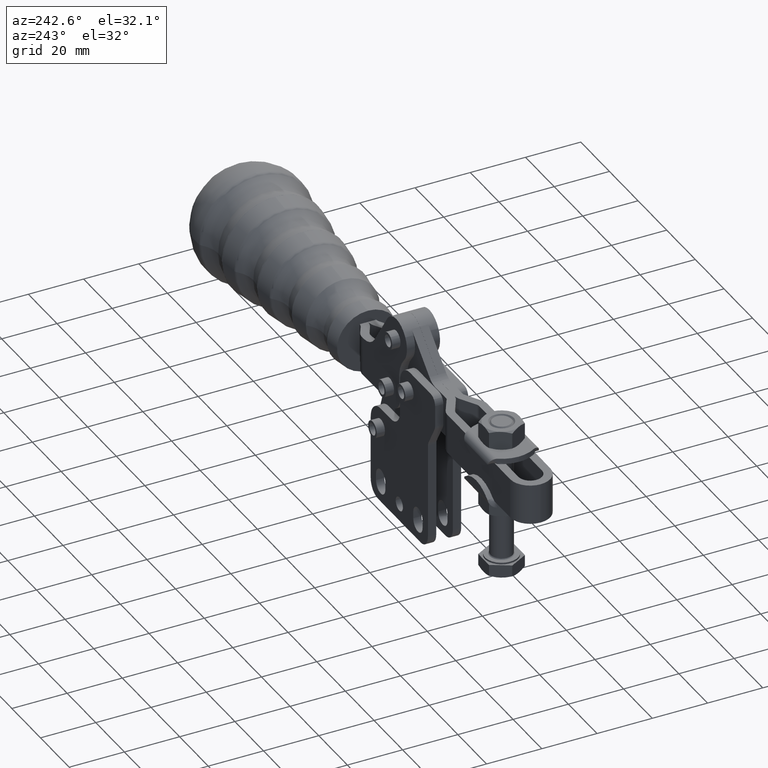
[diagram: clean part render]
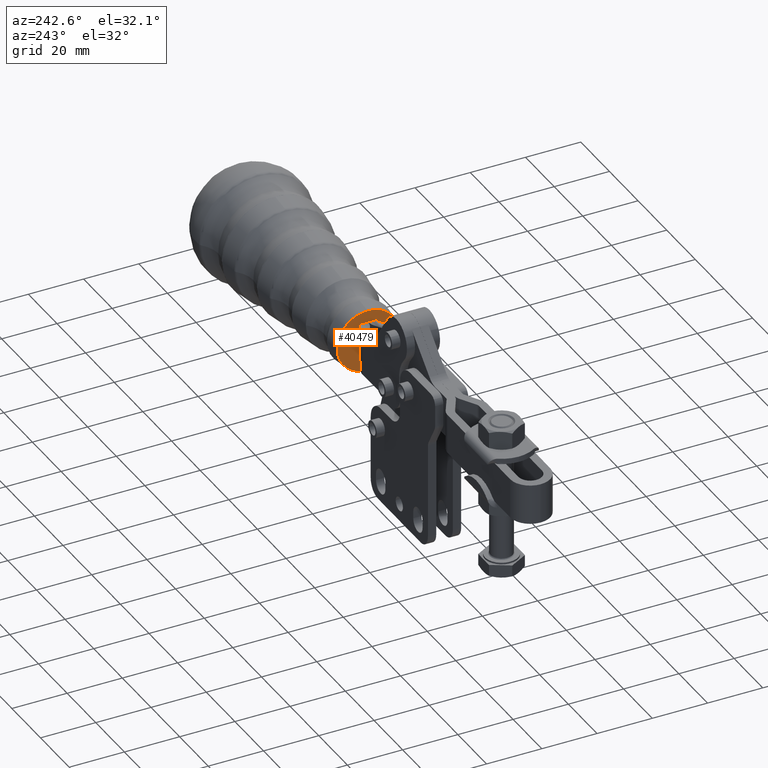
[diagram: same view with one face highlighted and labeled with its STEP entity id]
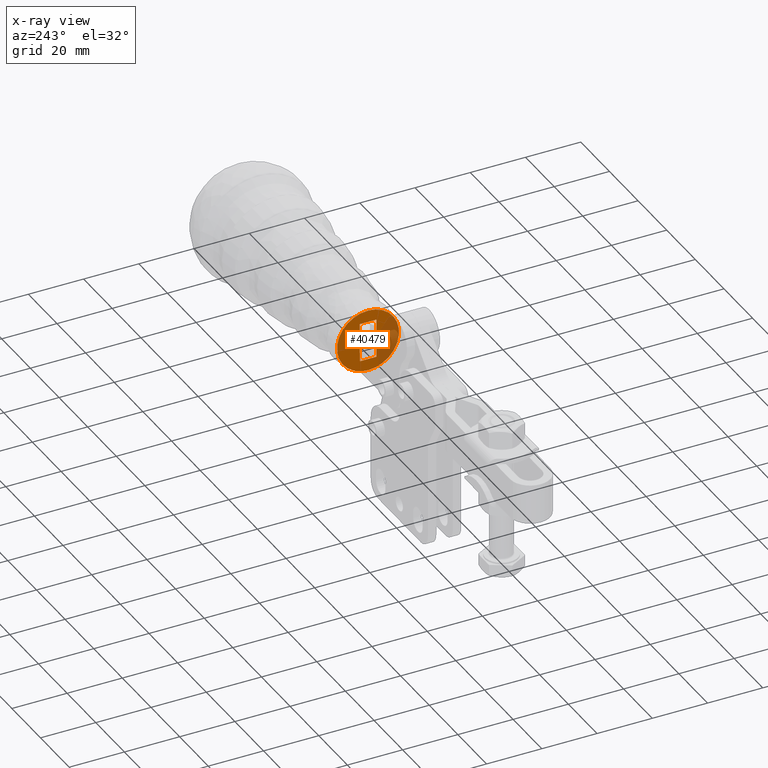
[diagram: x-ray of the same camera — body ghosted, the highlighted face saturated]
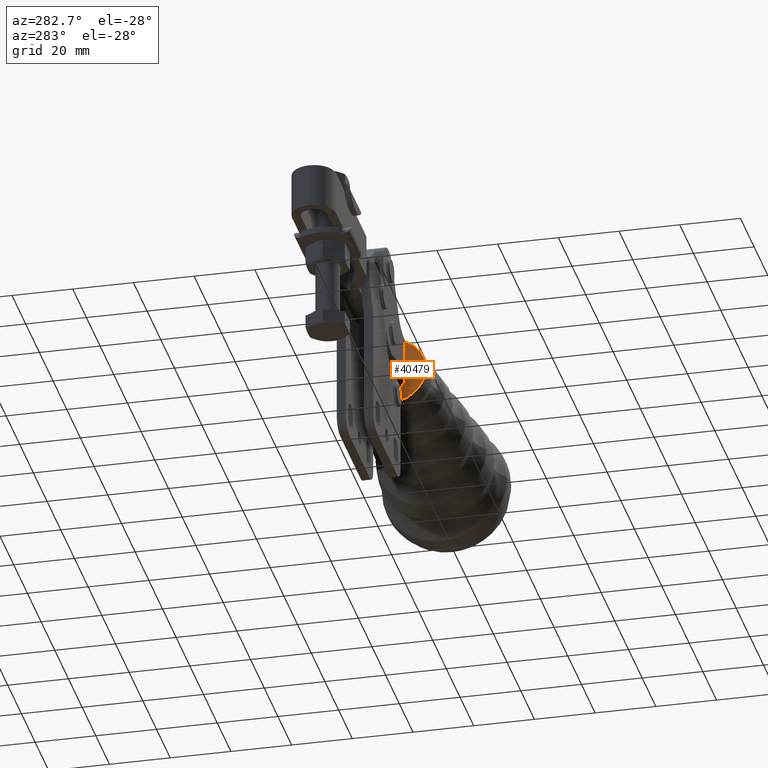
[diagram: same view with one face highlighted and labeled with its STEP entity id]
A machine part, auxiliary view. The second image highlights one B-rep face of the part: STEP entity #40479.
The next image is the same camera in x-ray: the body ghosted, the highlighted face saturated — about 30% of this face is hidden behind the body in this view.
A second angle (auxiliary view) of the same face is appended — the face is thin or edge-on in the first view.
In plain terms, the highlighted planar face has unit normal (-0.9999, -0, 0.0116).
Its self-contained STEP definition (entity closure, byte-faithful):
#1526=CARTESIAN_POINT('',(111.945821447134360,-66.289459766818965,-10.842478720014924));
#1527=VERTEX_POINT('',#1526);
#1536=CARTESIAN_POINT('',(112.205506961597180,-66.289459766818965,11.615246636916583));
#1537=VERTEX_POINT('',#1536);
#1544=CARTESIAN_POINT('',(112.075664204365780,-66.289459766818965,0.386383958450831));
#1545=DIRECTION('',(-0.999933151699302,-1.726863E-016,0.011562531414043));
#1546=DIRECTION('',(-0.011562531414043,1.289759E-016,-0.999933151699302));
#1547=AXIS2_PLACEMENT_3D('',#1544,#1545,#1546);
#1548=CIRCLE('',#1547,11.229613359036300);
#1549=EDGE_CURVE('',#1527,#1537,#1548,.T.);
#17153=CARTESIAN_POINT('',(112.156601924262730,-66.289459766818950,7.385916020345923));
#17154=VERTEX_POINT('',#17153);
#17163=CARTESIAN_POINT('',(111.994726484466130,-66.289459766818965,-6.613148103444315));
#17164=VERTEX_POINT('',#17163);
#17186=CARTESIAN_POINT('',(112.156601924262730,-63.289459766818950,7.385916020345922));
#17187=VERTEX_POINT('',#17186);
#17195=CARTESIAN_POINT('',(111.994726484466130,-63.289459766818950,-6.613148103444316));
#17196=VERTEX_POINT('',#17195);
#17197=CARTESIAN_POINT('',(111.994726484466130,-63.289459766818950,-6.613148103444316));
#17198=DIRECTION('',(0.011562531414043,0.0,0.999933151699302));
#17199=VECTOR('',#17198,14.000000000000009);
#17200=LINE('',#17197,#17199);
#17201=EDGE_CURVE('',#17196,#17187,#17200,.T.);
#17944=CARTESIAN_POINT('',(112.156601924265230,-69.289459766818965,7.385916020345963));
#17945=VERTEX_POINT('',#17944);
#17954=CARTESIAN_POINT('',(111.994726484468600,-69.289459766818965,-6.613148103444276));
#17955=VERTEX_POINT('',#17954);
#17963=CARTESIAN_POINT('',(111.994726484468600,-69.289459766818965,-6.613148103444276));
#17964=DIRECTION('',(0.011562531414045,0.0,0.999933151699302));
#17965=VECTOR('',#17964,14.000000000000012);
#17966=LINE('',#17963,#17965);
#17967=EDGE_CURVE('',#17955,#17945,#17966,.T.);
#18402=CARTESIAN_POINT('',(111.994726484466130,-66.289459766818965,-6.613148103444315));
#18403=DIRECTION('',(8.242296E-013,-1.0,1.302662E-014));
#18404=VECTOR('',#18403,3.0);
#18405=LINE('',#18402,#18404);
#18406=EDGE_CURVE('',#17164,#17955,#18405,.T.);
#40390=CARTESIAN_POINT('',(111.994726484466130,-63.289459766818950,-6.613148103444316));
#40391=DIRECTION('',(0.0,-1.0,0.0));
#40392=VECTOR('',#40391,3.000000000000014);
#40393=LINE('',#40390,#40392);
#40394=EDGE_CURVE('',#17196,#17164,#40393,.T.);
#40415=CARTESIAN_POINT('',(112.156601924265230,-69.289459766818965,7.385916020345963));
#40416=DIRECTION('',(-8.337035E-013,1.0,-1.332268E-014));
#40417=VECTOR('',#40416,3.000000000000014);
#40418=LINE('',#40415,#40417);
#40419=EDGE_CURVE('',#17945,#17154,#40418,.T.);
#40438=CARTESIAN_POINT('',(112.156601924262730,-66.289459766818950,7.385916020345923));
#40439=DIRECTION('',(0.0,1.0,0.0));
#40440=VECTOR('',#40439,3.0);
#40441=LINE('',#40438,#40440);
#40442=EDGE_CURVE('',#17154,#17187,#40441,.T.);
#40456=CARTESIAN_POINT('',(112.010742825750070,-66.289459766818965,-5.228047380782046));
#40457=DIRECTION('',(-0.999933151699302,-1.726863E-016,0.011562531414043));
#40458=DIRECTION('',(0.0,1.0,0.0));
#40459=AXIS2_PLACEMENT_3D('',#40456,#40457,#40458);
#40460=PLANE('',#40459);
#40461=ORIENTED_EDGE('',*,*,#1549,.T.);
#40462=CARTESIAN_POINT('',(112.075664204365780,-66.289459766818965,0.386383958450831));
#40463=DIRECTION('',(-0.999933151699302,-1.726863E-016,0.011562531414043));
#40464=DIRECTION('',(-0.011562531414043,1.289759E-016,-0.999933151699302));
#40465=AXIS2_PLACEMENT_3D('',#40462,#40463,#40464);
#40466=CIRCLE('',#40465,11.229613359036300);
#40467=EDGE_CURVE('',#1537,#1527,#40466,.T.);
#40468=ORIENTED_EDGE('',*,*,#40467,.T.);
#40469=EDGE_LOOP('',(#40461,#40468));
#40470=FACE_OUTER_BOUND('',#40469,.T.);
#40471=ORIENTED_EDGE('',*,*,#17967,.F.);
#40472=ORIENTED_EDGE('',*,*,#18406,.F.);
#40473=ORIENTED_EDGE('',*,*,#40394,.F.);
#40474=ORIENTED_EDGE('',*,*,#17201,.T.);
#40475=ORIENTED_EDGE('',*,*,#40442,.F.);
#40476=ORIENTED_EDGE('',*,*,#40419,.F.);
#40477=EDGE_LOOP('',(#40471,#40472,#40473,#40474,#40475,#40476));
#40478=FACE_BOUND('',#40477,.T.);
#40479=ADVANCED_FACE('',(#40470,#40478),#40460,.T.);